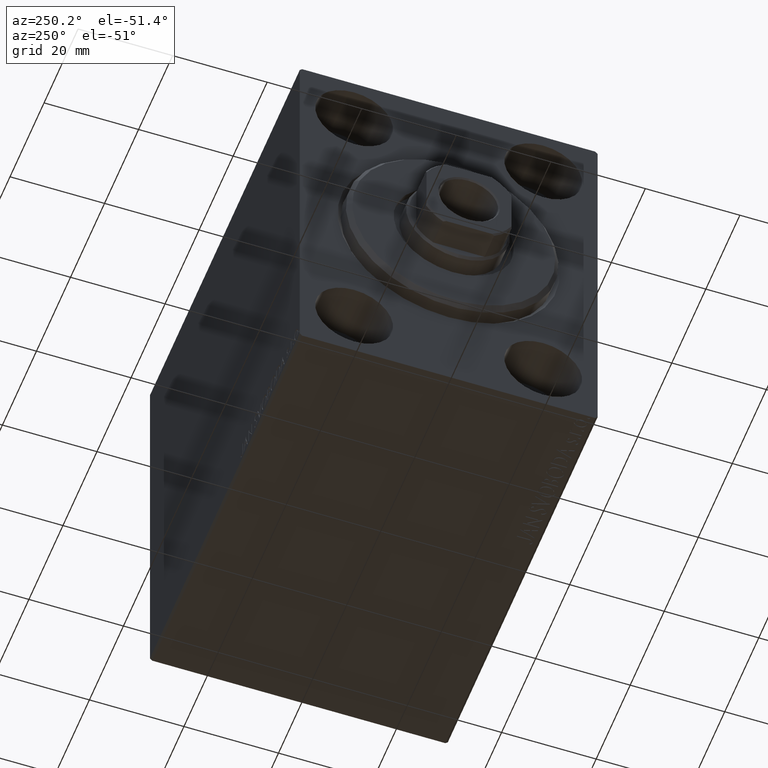
[diagram: clean part render]
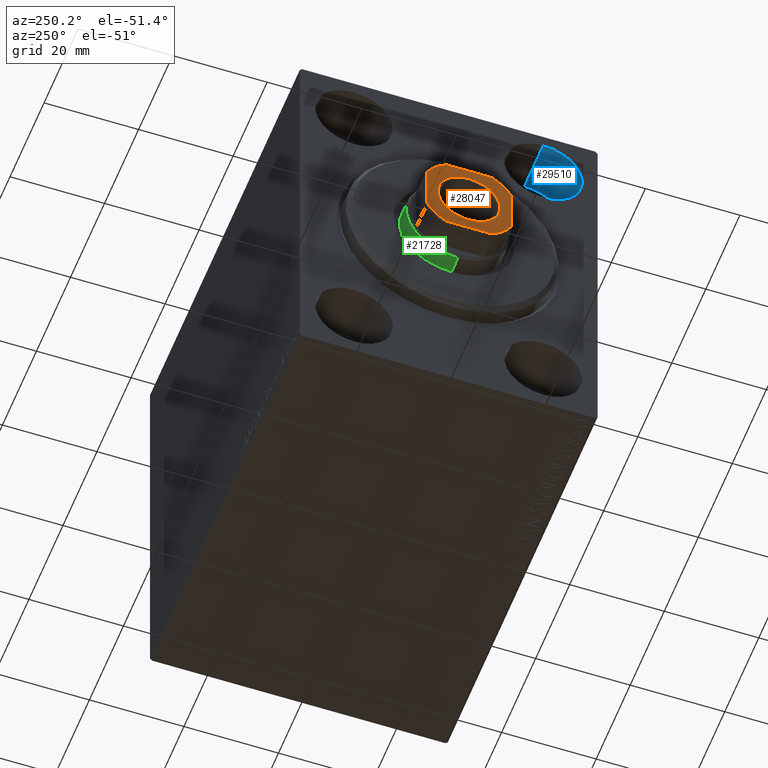
[diagram: same view with three faces highlighted in distinct colors, each labeled with its STEP entity id]
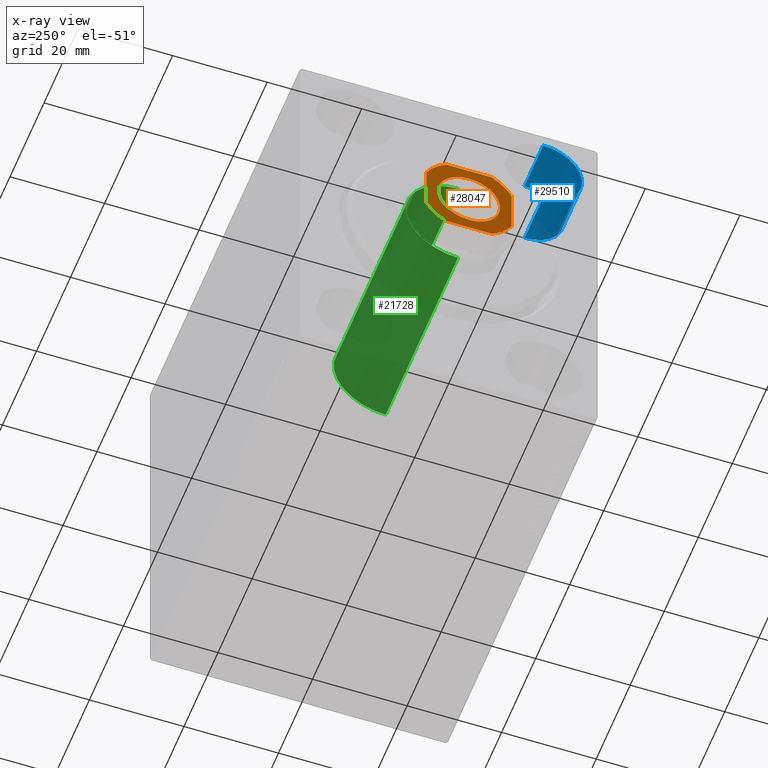
[diagram: x-ray of the same camera — body ghosted, the three highlighted faces saturated]
A machine part, auxiliary view with three faces highlighted in distinct colors.
The next image is the same camera in x-ray (body ghosted, the three faces saturated) — at least one of them is partly hidden behind the body in this view.
Their STEP definitions:

[orange] entity #28047 — the highlighted planar face has unit normal (-1, 0, 0).
#102 = AXIS2_PLACEMENT_3D ( 'NONE', #32858, #16634, #15966 ) ;
#278 = EDGE_CURVE ( 'NONE', #41159, #14005, #14115, .T. ) ;
#790 = AXIS2_PLACEMENT_3D ( 'NONE', #13283, #23057, #33298 ) ;
#1746 = CARTESIAN_POINT ( 'NONE',  ( 0.000000000000000000, 0.000000000000000000, 88.00000000000000000 ) ) ;
#1833 = EDGE_LOOP ( 'NONE', ( #14322, #3469 ) ) ;
#2388 = PLANE ( 'NONE',  #102 ) ;
#2660 = DIRECTION ( 'NONE',  ( -0.000000000000000000, 0.000000000000000000, 1.000000000000000000 ) ) ;
#3128 = CARTESIAN_POINT ( 'NONE',  ( -8.999999999999998224, -9.000000000000001776, 88.00000000000000000 ) ) ;
#3214 = EDGE_CURVE ( 'NONE', #4950, #41754, #38846, .T. ) ;
#3469 = ORIENTED_EDGE ( 'NONE', *, *, #5761, .T. ) ;
#3811 = CARTESIAN_POINT ( 'NONE',  ( -8.999999999999998224, -4.799999999999960743, 88.00000000000000000 ) ) ;
#3919 = CIRCLE ( 'NONE', #11736, 10.19999999999997975 ) ;
#4950 = VERTEX_POINT ( 'NONE', #32752 ) ;
#5051 = VECTOR ( 'NONE', #43456, 1000.000000000000000 ) ;
#5761 = EDGE_CURVE ( 'NONE', #9861, #38765, #33769, .T. ) ;
#5950 = EDGE_CURVE ( 'NONE', #41754, #21017, #3919, .T. ) ;
#7767 = CARTESIAN_POINT ( 'NONE',  ( 8.999999999999998224, 4.799999999999978506, 88.00000000000000000 ) ) ;
#7906 = EDGE_CURVE ( 'NONE', #14005, #21740, #30247, .T. ) ;
#8661 = CIRCLE ( 'NONE', #43471, 6.550000000000000711 ) ;
#9158 = CARTESIAN_POINT ( 'NONE',  ( 0.000000000000000000, 0.000000000000000000, 88.00000000000000000 ) ) ;
#9202 = CARTESIAN_POINT ( 'NONE',  ( -9.000000000000001776, 8.999999999999998224, 88.00000000000000000 ) ) ;
#9861 = VERTEX_POINT ( 'NONE', #41624 ) ;
#10048 = DIRECTION ( 'NONE',  ( 1.000000000000000000, 0.000000000000000000, 0.000000000000000000 ) ) ;
#10531 = CIRCLE ( 'NONE', #12686, 10.19999999999998863 ) ;
#10756 = DIRECTION ( 'NONE',  ( -1.927470528863119049E-16, 1.000000000000000000, -0.000000000000000000 ) ) ;
#11736 = AXIS2_PLACEMENT_3D ( 'NONE', #33417, #29622, #10048 ) ;
#12076 = DIRECTION ( 'NONE',  ( 1.000000000000000000, 0.000000000000000000, 0.000000000000000000 ) ) ;
#12686 = AXIS2_PLACEMENT_3D ( 'NONE', #1746, #39120, #15335 ) ;
#12780 = LINE ( 'NONE', #9202, #5051 ) ;
#13283 = CARTESIAN_POINT ( 'NONE',  ( 0.000000000000000000, 0.000000000000000000, 88.00000000000000000 ) ) ;
#14005 = VERTEX_POINT ( 'NONE', #7767 ) ;
#14075 = CARTESIAN_POINT ( 'NONE',  ( -4.799999999999956302, -9.000000000000001776, 88.00000000000000000 ) ) ;
#14115 = LINE ( 'NONE', #27659, #14775 ) ;
#14322 = ORIENTED_EDGE ( 'NONE', *, *, #29929, .T. ) ;
#14775 = VECTOR ( 'NONE', #10756, 1000.000000000000000 ) ;
#15051 = EDGE_LOOP ( 'NONE', ( #25986, #37028, #33618, #26437, #37550, #15598, #16400, #37079 ) ) ;
#15335 = DIRECTION ( 'NONE',  ( 1.000000000000000000, 0.000000000000000000, 0.000000000000000000 ) ) ;
#15598 = ORIENTED_EDGE ( 'NONE', *, *, #5950, .T. ) ;
#15966 = DIRECTION ( 'NONE',  ( 1.000000000000000000, 0.000000000000000000, 0.000000000000000000 ) ) ;
#16400 = ORIENTED_EDGE ( 'NONE', *, *, #36971, .T. ) ;
#16634 = DIRECTION ( 'NONE',  ( -0.000000000000000000, 0.000000000000000000, 1.000000000000000000 ) ) ;
#17674 = DIRECTION ( 'NONE',  ( 1.000000000000000000, 0.000000000000000000, 0.000000000000000000 ) ) ;
#18626 = DIRECTION ( 'NONE',  ( 1.927470528863119049E-16, -1.000000000000000000, 0.000000000000000000 ) ) ;
#18928 = DIRECTION ( 'NONE',  ( 1.000000000000000000, 0.000000000000000000, 0.000000000000000000 ) ) ;
#19565 = EDGE_CURVE ( 'NONE', #25029, #41159, #10531, .T. ) ;
#19733 = FACE_BOUND ( 'NONE', #1833, .T. ) ;
#19995 = CIRCLE ( 'NONE', #790, 10.20000000000000462 ) ;
#21017 = VERTEX_POINT ( 'NONE', #14075 ) ;
#21740 = VERTEX_POINT ( 'NONE', #43236 ) ;
#23057 = DIRECTION ( 'NONE',  ( -0.000000000000000000, 0.000000000000000000, 1.000000000000000000 ) ) ;
#23621 = VECTOR ( 'NONE', #37812, 1000.000000000000000 ) ;
#23668 = CARTESIAN_POINT ( 'NONE',  ( 0.000000000000000000, 0.000000000000000000, 88.00000000000000000 ) ) ;
#25029 = VERTEX_POINT ( 'NONE', #43380 ) ;
#25655 = CARTESIAN_POINT ( 'NONE',  ( -4.800000000000012257, 8.999999999999998224, 88.00000000000000000 ) ) ;
#25986 = ORIENTED_EDGE ( 'NONE', *, *, #278, .T. ) ;
#26437 = ORIENTED_EDGE ( 'NONE', *, *, #27980, .T. ) ;
#27344 = EDGE_CURVE ( 'NONE', #21740, #42259, #12780, .T. ) ;
#27659 = CARTESIAN_POINT ( 'NONE',  ( 8.999999999999998224, 8.999999999999998224, 88.00000000000000000 ) ) ;
#27980 = EDGE_CURVE ( 'NONE', #42259, #4950, #19995, .T. ) ;
#28047 = ADVANCED_FACE ( 'NONE', ( #19733, #40188 ), #2388, .T. ) ;
#28748 = DIRECTION ( 'NONE',  ( 0.000000000000000000, -0.000000000000000000, -1.000000000000000000 ) ) ;
#29014 = CARTESIAN_POINT ( 'NONE',  ( 9.000000000000001776, -4.799999999999974065, 88.00000000000000000 ) ) ;
#29622 = DIRECTION ( 'NONE',  ( -0.000000000000000000, 0.000000000000000000, 1.000000000000000000 ) ) ;
#29736 = VECTOR ( 'NONE', #18626, 1000.000000000000000 ) ;
#29929 = EDGE_CURVE ( 'NONE', #38765, #9861, #8661, .T. ) ;
#30247 = CIRCLE ( 'NONE', #36626, 10.19999999999998863 ) ;
#32752 = CARTESIAN_POINT ( 'NONE',  ( -9.000000000000001776, 4.800000000000007816, 88.00000000000000000 ) ) ;
#32858 = CARTESIAN_POINT ( 'NONE',  ( 0.000000000000000000, 0.000000000000000000, 88.00000000000000000 ) ) ;
#32917 = CARTESIAN_POINT ( 'NONE',  ( 0.000000000000000000, 0.000000000000000000, 88.00000000000000000 ) ) ;
#33036 = AXIS2_PLACEMENT_3D ( 'NONE', #9158, #28748, #12076 ) ;
#33298 = DIRECTION ( 'NONE',  ( 1.000000000000000000, 0.000000000000000000, 0.000000000000000000 ) ) ;
#33417 = CARTESIAN_POINT ( 'NONE',  ( 0.000000000000000000, 0.000000000000000000, 88.00000000000000000 ) ) ;
#33618 = ORIENTED_EDGE ( 'NONE', *, *, #27344, .T. ) ;
#33769 = CIRCLE ( 'NONE', #33036, 6.550000000000000711 ) ;
#36626 = AXIS2_PLACEMENT_3D ( 'NONE', #32917, #2660, #18928 ) ;
#36971 = EDGE_CURVE ( 'NONE', #21017, #25029, #37591, .T. ) ;
#37028 = ORIENTED_EDGE ( 'NONE', *, *, #7906, .T. ) ;
#37079 = ORIENTED_EDGE ( 'NONE', *, *, #19565, .T. ) ;
#37245 = DIRECTION ( 'NONE',  ( 0.000000000000000000, -0.000000000000000000, -1.000000000000000000 ) ) ;
#37550 = ORIENTED_EDGE ( 'NONE', *, *, #3214, .T. ) ;
#37591 = LINE ( 'NONE', #3128, #23621 ) ;
#37812 = DIRECTION ( 'NONE',  ( 1.000000000000000000, 0.000000000000000000, 0.000000000000000000 ) ) ;
#38765 = VERTEX_POINT ( 'NONE', #39193 ) ;
#38846 = LINE ( 'NONE', #39069, #29736 ) ;
#39069 = CARTESIAN_POINT ( 'NONE',  ( -9.000000000000001776, 8.999999999999998224, 88.00000000000000000 ) ) ;
#39120 = DIRECTION ( 'NONE',  ( -0.000000000000000000, 0.000000000000000000, 1.000000000000000000 ) ) ;
#39193 = CARTESIAN_POINT ( 'NONE',  ( 6.550000000000000711, 0.000000000000000000, 88.00000000000000000 ) ) ;
#40188 = FACE_OUTER_BOUND ( 'NONE', #15051, .T. ) ;
#41159 = VERTEX_POINT ( 'NONE', #29014 ) ;
#41624 = CARTESIAN_POINT ( 'NONE',  ( -6.550000000000000711, 8.021436534415164234E-16, 88.00000000000000000 ) ) ;
#41754 = VERTEX_POINT ( 'NONE', #3811 ) ;
#42259 = VERTEX_POINT ( 'NONE', #25655 ) ;
#43236 = CARTESIAN_POINT ( 'NONE',  ( 4.799999999999979394, 8.999999999999998224, 88.00000000000000000 ) ) ;
#43380 = CARTESIAN_POINT ( 'NONE',  ( 4.799999999999974065, -9.000000000000001776, 88.00000000000000000 ) ) ;
#43456 = DIRECTION ( 'NONE',  ( -1.000000000000000000, -0.000000000000000000, -0.000000000000000000 ) ) ;
#43471 = AXIS2_PLACEMENT_3D ( 'NONE', #23668, #37245, #17674 ) ;

[blue] entity #29510 — the highlighted cylindrical surface (partial cylindrical patch) has radius 8.25 mm, axis along (-1, -0, -0).
#3242 = ORIENTED_EDGE ( 'NONE', *, *, #12506, .F. ) ;
#4774 = ORIENTED_EDGE ( 'NONE', *, *, #22229, .T. ) ;
#5931 = CYLINDRICAL_SURFACE ( 'NONE', #29245, 8.249999999999992895 ) ;
#5952 = EDGE_CURVE ( 'NONE', #19128, #25512, #38024, .T. ) ;
#8348 = VECTOR ( 'NONE', #36232, 1000.000000000000000 ) ;
#11621 = AXIS2_PLACEMENT_3D ( 'NONE', #36986, #19427, #32979 ) ;
#12506 = EDGE_CURVE ( 'NONE', #25512, #14602, #32455, .T. ) ;
#14602 = VERTEX_POINT ( 'NONE', #15058 ) ;
#15058 = CARTESIAN_POINT ( 'NONE',  ( 0.000000000000000000, -19.99999999999999645, 39.74999999999999289 ) ) ;
#17716 = VECTOR ( 'NONE', #32257, 1000.000000000000000 ) ;
#18706 = CARTESIAN_POINT ( 'NONE',  ( 11.00000000000000000, -19.99999999999999645, 23.25000000000000355 ) ) ;
#19091 = DIRECTION ( 'NONE',  ( 0.000000000000000000, 0.000000000000000000, 1.000000000000000000 ) ) ;
#19128 = VERTEX_POINT ( 'NONE', #40544 ) ;
#19427 = DIRECTION ( 'NONE',  ( -1.000000000000000000, 0.000000000000000000, 0.000000000000000000 ) ) ;
#22229 = EDGE_CURVE ( 'NONE', #19128, #34608, #42264, .T. ) ;
#22621 = FACE_OUTER_BOUND ( 'NONE', #23551, .T. ) ;
#22652 = CARTESIAN_POINT ( 'NONE',  ( 11.00000000000000000, -19.99999999999999645, 39.74999999999999289 ) ) ;
#23551 = EDGE_LOOP ( 'NONE', ( #24101, #4774, #29954, #3242 ) ) ;
#24101 = ORIENTED_EDGE ( 'NONE', *, *, #5952, .F. ) ;
#24970 = CARTESIAN_POINT ( 'NONE',  ( 0.000000000000000000, -19.99999999999999645, 23.25000000000000355 ) ) ;
#25116 = CIRCLE ( 'NONE', #11621, 8.249999999999992895 ) ;
#25512 = VERTEX_POINT ( 'NONE', #28057 ) ;
#25946 = CARTESIAN_POINT ( 'NONE',  ( 11.00000000000000000, -19.99999999999999645, 31.50000000000000000 ) ) ;
#27163 = CARTESIAN_POINT ( 'NONE',  ( 11.00000000000000000, -19.99999999999999645, 31.50000000000000000 ) ) ;
#28057 = CARTESIAN_POINT ( 'NONE',  ( 11.00000000000000000, -19.99999999999999645, 39.74999999999999289 ) ) ;
#29245 = AXIS2_PLACEMENT_3D ( 'NONE', #25946, #43303, #19091 ) ;
#29510 = ADVANCED_FACE ( 'NONE', ( #22621 ), #5931, .F. ) ;
#29954 = ORIENTED_EDGE ( 'NONE', *, *, #35669, .T. ) ;
#30072 = DIRECTION ( 'NONE',  ( 0.000000000000000000, 0.000000000000000000, 1.000000000000000000 ) ) ;
#31639 = AXIS2_PLACEMENT_3D ( 'NONE', #27163, #43193, #30072 ) ;
#32257 = DIRECTION ( 'NONE',  ( -1.000000000000000000, -0.000000000000000000, -0.000000000000000000 ) ) ;
#32455 = LINE ( 'NONE', #22652, #8348 ) ;
#32979 = DIRECTION ( 'NONE',  ( 0.000000000000000000, 0.000000000000000000, 1.000000000000000000 ) ) ;
#34608 = VERTEX_POINT ( 'NONE', #24970 ) ;
#35669 = EDGE_CURVE ( 'NONE', #34608, #14602, #25116, .T. ) ;
#36232 = DIRECTION ( 'NONE',  ( -1.000000000000000000, -0.000000000000000000, -0.000000000000000000 ) ) ;
#36986 = CARTESIAN_POINT ( 'NONE',  ( 0.000000000000000000, -19.99999999999999645, 31.50000000000000000 ) ) ;
#38024 = CIRCLE ( 'NONE', #31639, 8.249999999999992895 ) ;
#40544 = CARTESIAN_POINT ( 'NONE',  ( 11.00000000000000000, -19.99999999999999645, 23.25000000000000355 ) ) ;
#42264 = LINE ( 'NONE', #18706, #17716 ) ;
#43193 = DIRECTION ( 'NONE',  ( -1.000000000000000000, 0.000000000000000000, 0.000000000000000000 ) ) ;
#43303 = DIRECTION ( 'NONE',  ( -1.000000000000000000, -0.000000000000000000, -0.000000000000000000 ) ) ;

[green] entity #21728 — the highlighted cylindrical surface (partial cylindrical patch) has radius 11 mm, axis along (1, -0, -0).
#78 = DIRECTION ( 'NONE',  ( -1.000000000000000000, 0.000000000000000000, 0.000000000000000000 ) ) ;
#444 = ORIENTED_EDGE ( 'NONE', *, *, #26076, .T. ) ;
#718 = CARTESIAN_POINT ( 'NONE',  ( -11.00000000000000000, 0.000000000000000000, 81.49999999999997158 ) ) ;
#2185 = CARTESIAN_POINT ( 'NONE',  ( 11.00000000000000000, 1.347111479062088405E-15, 39.00000000000000000 ) ) ;
#5233 = EDGE_LOOP ( 'NONE', ( #28414, #444, #27450, #36843 ) ) ;
#6170 = LINE ( 'NONE', #16660, #17535 ) ;
#6842 = DIRECTION ( 'NONE',  ( -0.000000000000000000, -0.000000000000000000, -1.000000000000000000 ) ) ;
#7429 = DIRECTION ( 'NONE',  ( 1.000000000000000000, 0.000000000000000000, 0.000000000000000000 ) ) ;
#7703 = EDGE_CURVE ( 'NONE', #20883, #35041, #35233, .T. ) ;
#8091 = CARTESIAN_POINT ( 'NONE',  ( 0.000000000000000000, 0.000000000000000000, 39.00000000000000000 ) ) ;
#9049 = VERTEX_POINT ( 'NONE', #2185 ) ;
#10045 = CARTESIAN_POINT ( 'NONE',  ( 0.000000000000000000, 0.000000000000000000, 81.49999999999997158 ) ) ;
#10274 = EDGE_CURVE ( 'NONE', #20883, #41803, #6170, .T. ) ;
#10397 = CARTESIAN_POINT ( 'NONE',  ( 11.00000000000000000, 1.347111479062088405E-15, 81.99999999999998579 ) ) ;
#11490 = EDGE_CURVE ( 'NONE', #9049, #41803, #40280, .T. ) ;
#14039 = DIRECTION ( 'NONE',  ( 1.000000000000000000, 0.000000000000000000, 0.000000000000000000 ) ) ;
#16153 = AXIS2_PLACEMENT_3D ( 'NONE', #8091, #34808, #7429 ) ;
#16660 = CARTESIAN_POINT ( 'NONE',  ( -11.00000000000000000, 0.000000000000000000, 81.99999999999998579 ) ) ;
#17007 = CYLINDRICAL_SURFACE ( 'NONE', #20554, 11.00000000000000000 ) ;
#17535 = VECTOR ( 'NONE', #36879, 1000.000000000000000 ) ;
#20554 = AXIS2_PLACEMENT_3D ( 'NONE', #22779, #30555, #78 ) ;
#20883 = VERTEX_POINT ( 'NONE', #718 ) ;
#21728 = ADVANCED_FACE ( 'NONE', ( #30333 ), #17007, .T. ) ;
#22076 = VECTOR ( 'NONE', #6842, 1000.000000000000000 ) ;
#22779 = CARTESIAN_POINT ( 'NONE',  ( 0.000000000000000000, 0.000000000000000000, 81.99999999999998579 ) ) ;
#23606 = DIRECTION ( 'NONE',  ( 0.000000000000000000, 0.000000000000000000, -1.000000000000000000 ) ) ;
#26076 = EDGE_CURVE ( 'NONE', #35041, #9049, #34417, .T. ) ;
#27450 = ORIENTED_EDGE ( 'NONE', *, *, #11490, .T. ) ;
#28414 = ORIENTED_EDGE ( 'NONE', *, *, #7703, .T. ) ;
#30333 = FACE_OUTER_BOUND ( 'NONE', #5233, .T. ) ;
#30555 = DIRECTION ( 'NONE',  ( -0.000000000000000000, -0.000000000000000000, -1.000000000000000000 ) ) ;
#30898 = CARTESIAN_POINT ( 'NONE',  ( 11.00000000000000000, 1.347111479062088405E-15, 81.49999999999997158 ) ) ;
#34417 = LINE ( 'NONE', #10397, #22076 ) ;
#34808 = DIRECTION ( 'NONE',  ( 0.000000000000000000, 0.000000000000000000, 1.000000000000000000 ) ) ;
#35041 = VERTEX_POINT ( 'NONE', #30898 ) ;
#35233 = CIRCLE ( 'NONE', #38053, 11.00000000000000000 ) ;
#36843 = ORIENTED_EDGE ( 'NONE', *, *, #10274, .F. ) ;
#36879 = DIRECTION ( 'NONE',  ( -0.000000000000000000, -0.000000000000000000, -1.000000000000000000 ) ) ;
#38053 = AXIS2_PLACEMENT_3D ( 'NONE', #10045, #23606, #14039 ) ;
#40280 = CIRCLE ( 'NONE', #16153, 11.00000000000000000 ) ;
#40883 = CARTESIAN_POINT ( 'NONE',  ( -11.00000000000000000, 0.000000000000000000, 39.00000000000000000 ) ) ;
#41803 = VERTEX_POINT ( 'NONE', #40883 ) ;